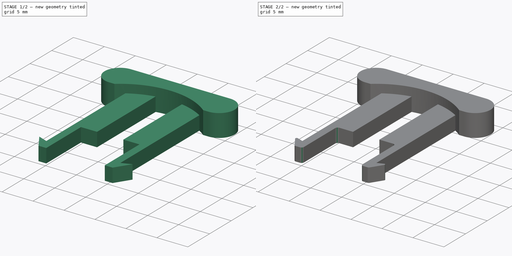
[diagram: build sequence overview — one tinted view per stage of 2, left to right]
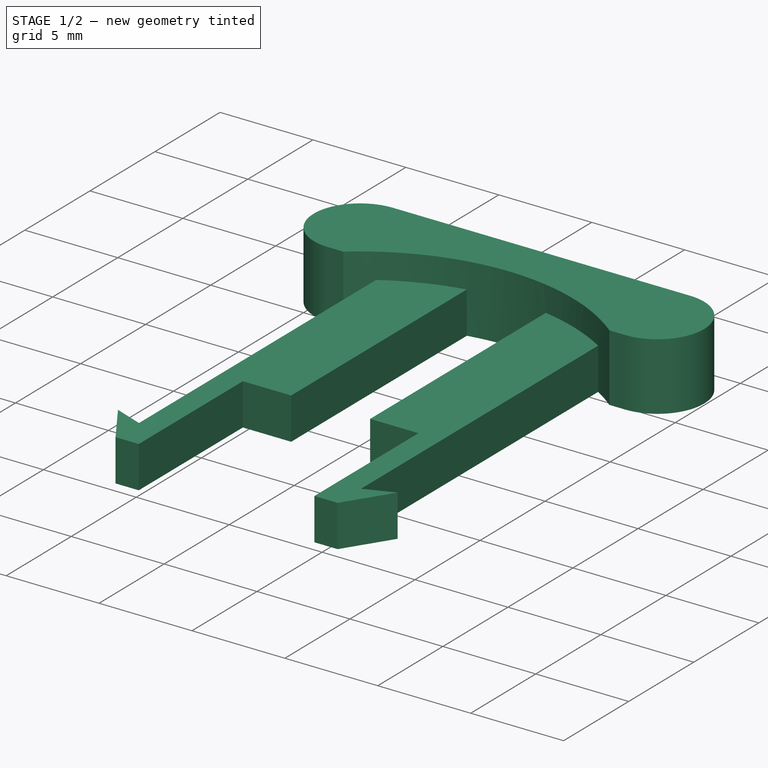
[diagram: stage 1 of 2 — iso view after this stage's code; geometry added in this stage tinted green]
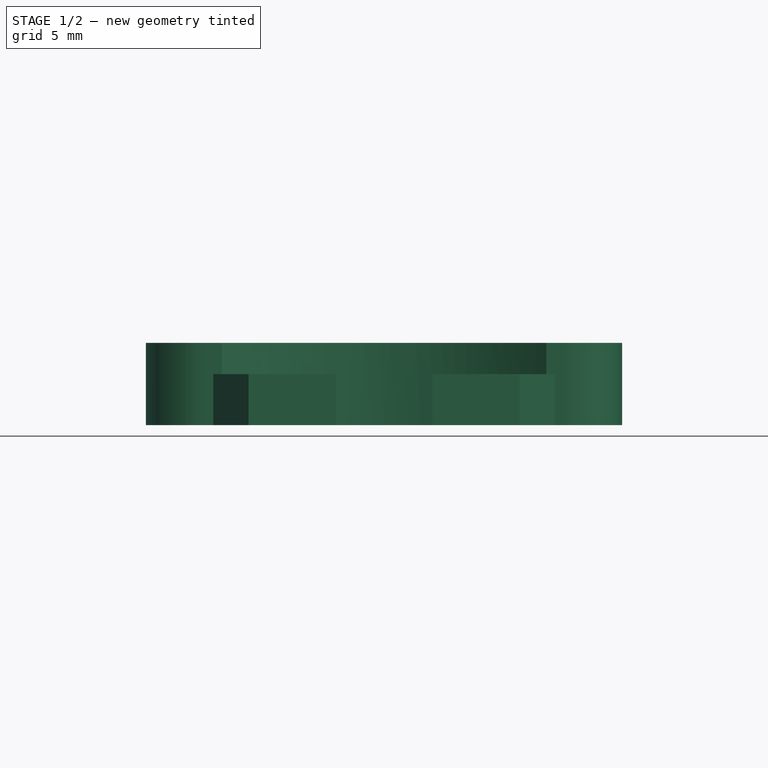
[diagram: stage 1 of 2 — front view after this stage's code; geometry added in this stage tinted green]
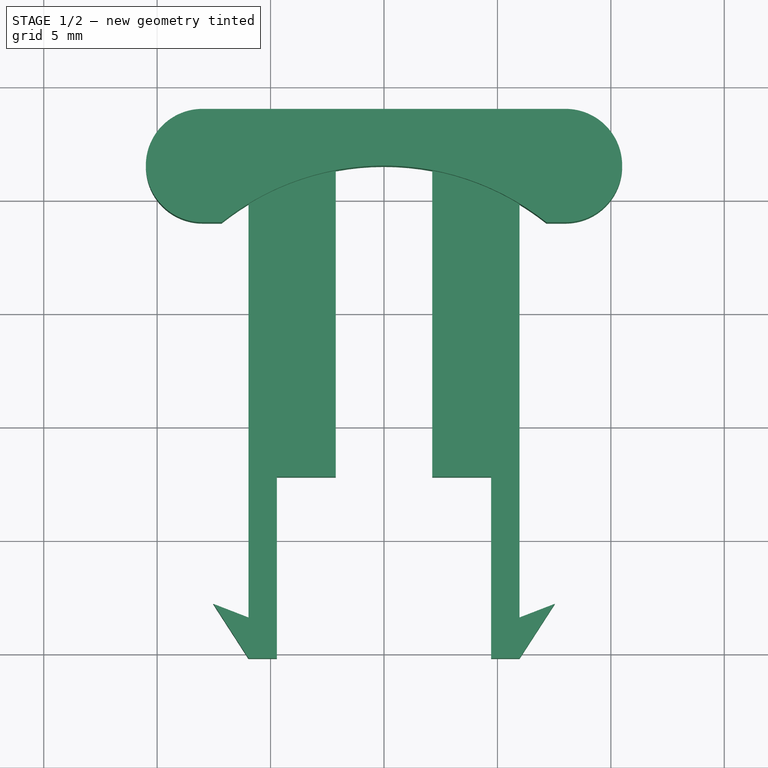
[diagram: stage 1 of 2 — top view after this stage's code; geometry added in this stage tinted green]
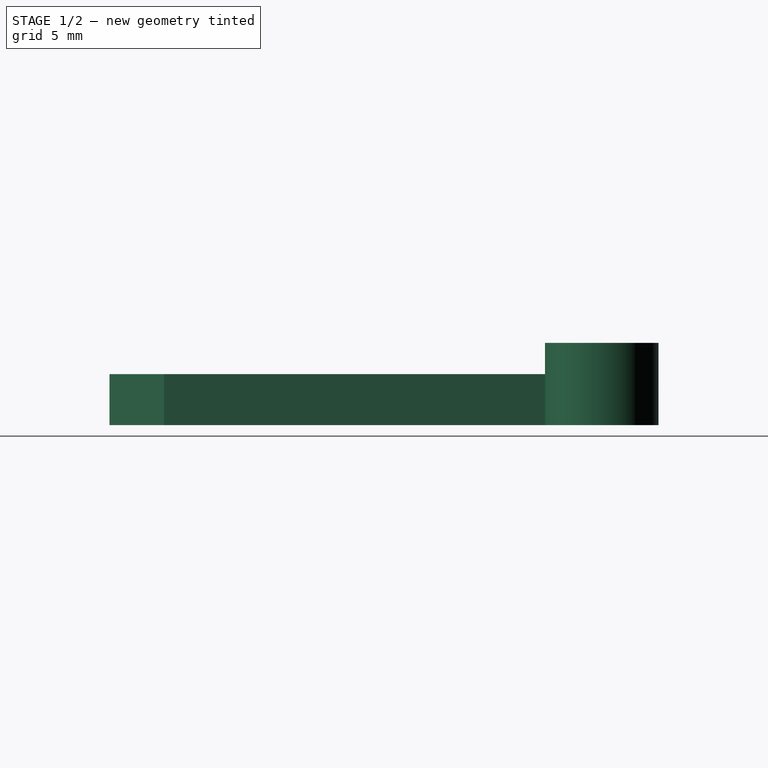
[diagram: stage 1 of 2 — right view after this stage's code; geometry added in this stage tinted green]
FCSTD DOCUMENT  (FreeCAD 0.21R33694 (Git))
Label: waru_awning_lock
License: All rights reserved
LicenseURL: https://en.wikipedia.org/wiki/All_rights_reserved
objects: Sketcher::SketchObject×2, PartDesign::Pad×2, PartDesign::Fillet×2, PartDesign::Body×1
note: 11 computed .brp shape members not serialized (recipe doc carries the construction recipe); baked Part::Feature solids carry a one-line shape summary decoded from their .brp

FEATURE [Sketcher::SketchObject] Sketch
  FullyConstrained = false
  MapMode = 5
  Support = -> [XY_Plane]
  sketch-geometry (6):
    g0: ArcOfCircle CenterX=0 CenterY=0 CenterZ=0 NormalX=0 NormalY=0 NormalZ=1 AngleXU=0 Radius=11.5 StartAngle=0.898845 EndAngle=2.24275
    g1: ArcOfCircle CenterX=-8 CenterY=11.5 CenterZ=0 NormalX=0 NormalY=0 NormalZ=1 AngleXU=0 Radius=2.5 StartAngle=1.5708 EndAngle=4.71239
    g2: ArcOfCircle CenterX=8 CenterY=11.5 CenterZ=0 NormalX=0 NormalY=0 NormalZ=1 AngleXU=0 Radius=2.5 StartAngle=4.71239 EndAngle=7.85398
    g3: LineSegment StartX=-8 StartY=9 StartZ=0 EndX=-7.15891 EndY=9 EndZ=0
    g4: LineSegment StartX=8 StartY=14 StartZ=0 EndX=-8 EndY=14 EndZ=0
    g5: LineSegment StartX=7.15891 StartY=9 StartZ=0 EndX=8 EndY=9 EndZ=0
  constraints (11):
    c: Tangent(g1,g3) = -1.5708
    c: Coincident(g5,g2) = -1.5708
    c: Tangent(g2,g4) = -1.5708
    c: Tangent(g4,g1) = -1.5708
    c: Equal(g1,g2)
    c: Horizontal(g3)
    c: Distance(g1,g2) = 16
    c: Diameter(g2) = 5
    c: DistanceX(g-2,g1) = -8
    c: Coincident(g0,g3)
    c: Coincident(g0,g5)
FEATURE [PartDesign::Pad] Pad
  Direction = (0,0,1)
  Length = 3.625
  Length2 = 10
  Profile = -> Sketch
  ReferenceAxis = -> Sketch [N_Axis]
  Type = 0
  expr: Length = 1.375 + 2.25
FEATURE [Sketcher::SketchObject] Sketch002
  FullyConstrained = false
  MapMode = 5
  Support = -> [XY_Plane]
  expr: Constraints[13] = -(4.25 / 2)
  sketch-geometry (18):
    g0: ArcOfCircle CenterX=0 CenterY=0 CenterZ=0 NormalX=0 NormalY=0 NormalZ=1 AngleXU=0 Radius=11.5 StartAngle=1.02445 EndAngle=1.38495
    g1: LineSegment StartX=-2.125 StartY=11.302 StartZ=0 EndX=-2.125 EndY=-2.19804 EndZ=0
    g2: LineSegment StartX=-2.125 StartY=-2.19804 StartZ=0 EndX=-4.725 EndY=-2.19804 EndZ=0
    g3: LineSegment StartX=-5.975 StartY=-2.19804 StartZ=0 EndX=-5.975 EndY=9.82595 EndZ=0
    g4: LineSegment StartX=4.725 StartY=-2.19804 StartZ=0 EndX=2.125 EndY=-2.19804 EndZ=0
    g5: LineSegment StartX=2.125 StartY=-2.19804 StartZ=0 EndX=2.125 EndY=11.302 EndZ=0
    g6: LineSegment StartX=5.975 StartY=9.82595 StartZ=0 EndX=5.975 EndY=-2.19804 EndZ=0
    g7: LineSegment StartX=-4.725 StartY=-2.19804 StartZ=0 EndX=-4.725 EndY=-10.198 EndZ=0
    g8: LineSegment StartX=-4.725 StartY=-10.198 StartZ=0 EndX=-5.975 EndY=-10.198 EndZ=0
    g9: LineSegment StartX=-5.975 StartY=-8.39804 StartZ=0 EndX=-5.975 EndY=-2.19804 EndZ=0
    g10: LineSegment StartX=4.725 StartY=-2.19804 StartZ=0 EndX=4.725 EndY=-10.198 EndZ=0
    g11: LineSegment StartX=4.725 StartY=-10.198 StartZ=0 EndX=5.975 EndY=-10.198 EndZ=0
    g12: LineSegment StartX=5.975 StartY=-8.39804 StartZ=0 EndX=5.975 EndY=-2.19804 EndZ=0
    g13: ArcOfCircle CenterX=0 CenterY=0 CenterZ=0 NormalX=0 NormalY=0 NormalZ=1 AngleXU=0 Radius=11.5 StartAngle=1.75665 EndAngle=2.11714
    g14: LineSegment StartX=-5.975 StartY=-10.198 StartZ=0 EndX=-7.525 EndY=-7.79804 EndZ=0
    g15: LineSegment StartX=-7.525 StartY=-7.79804 StartZ=0 EndX=-5.975 EndY=-8.39804 EndZ=0
    g16: LineSegment StartX=5.975 StartY=-10.198 StartZ=0 EndX=7.525 EndY=-7.79804 EndZ=0
    g17: LineSegment StartX=7.525 StartY=-7.79804 StartZ=0 EndX=5.975 EndY=-8.39804 EndZ=0
  constraints (52):
    c: Coincident(g1,g2)
    c: Horizontal(g2)
    c: Vertical(g1)
    c: Vertical(g3)
    c: Coincident(g4,g5)
    c: Horizontal(g4)
    c: Vertical(g5)
    c: Vertical(g6)
    c: Block(g0)
    c: Horizontal(g5,g1)
    c: Horizontal(g1,g4)
    c: DistanceX(g4,g6) = 3.85
    c: DistanceX(g1,g4) = 4.25
    c: DistanceX(g-2,g1) = -2.125
    c: DistanceY(g1,g1) = 13.5
    c: Coincident(g7,g8)
    c: Horizontal(g8)
    c: Vertical(g7)
    c: Vertical(g9)
    c: Coincident(g10,g11)
    c: Horizontal(g11)
    c: Vertical(g10)
    c: Vertical(g12)
    c: Horizontal(g7,g10)
    c: Equal(g8,g11)
    c: DistanceX(g11,g11) = 1.25
    c: DistanceY(g11,g12) = 8
    c: Coincident(g13,g3)
    c: Equal(g0,g13)
    c: PointOnObject(g0,g5)
    c: Coincident(g13,g1)
    c: Coincident(g0,g13)
    c: Coincident(g0,g6)
    c: Coincident(g14,g8)
    c: Coincident(g15,g14)
    c: Coincident(g16,g11)
    c: Coincident(g17,g16)
    c: Horizontal(g14,g16)
    c: Horizontal(g15,g17)
    c: Block(g3)
    c: Block(g9)
    c: Block(g7)
    c: Block(g2)
    c: Block(g6)
    c: Block(g4)
    c: Block(g10)
    c: DistanceX(g14,g7) = 2.8
    c: DistanceX(g10,g16) = 2.8
    c: DistanceY(g8,g14) = 2.4
    c: DistanceY(g7,g15) = 1.8
    c: Coincident(g9,g15)
    c: Coincident(g12,g17)
FEATURE [PartDesign::Pad] Pad001
  BaseFeature = -> Pad
  Direction = (0,0,1)
  Length = 2.25
  Length2 = 10
  Profile = -> Sketch002
  ReferenceAxis = -> Sketch002 [N_Axis]
  Type = 0
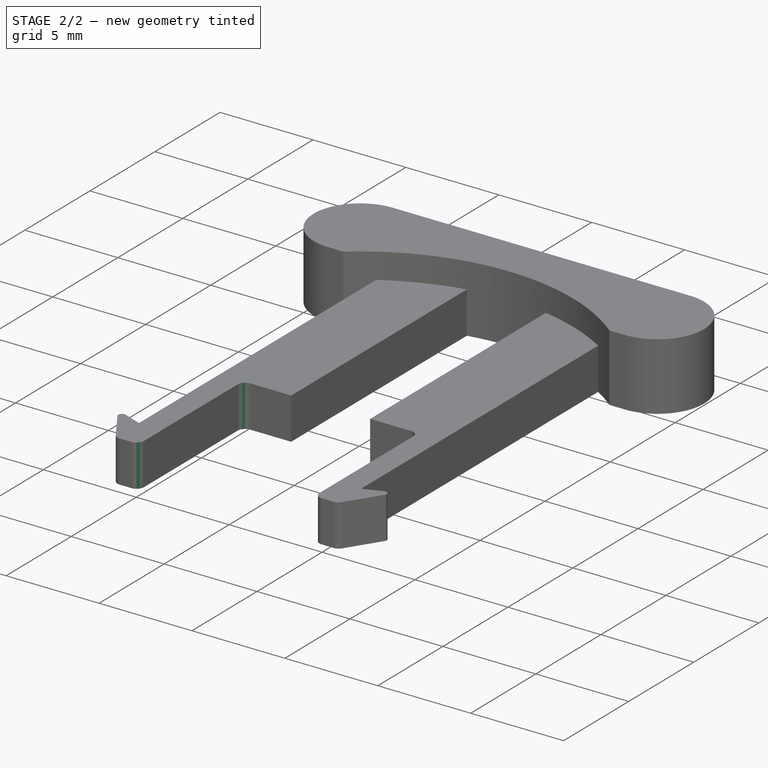
[diagram: stage 2 of 2 — iso view after this stage's code; geometry added in this stage tinted green]
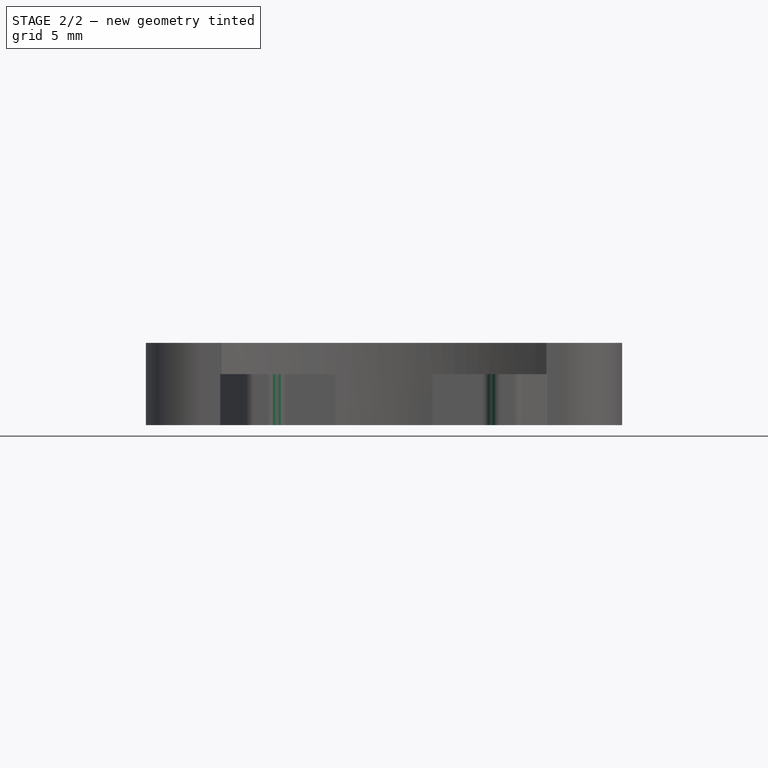
[diagram: stage 2 of 2 — front view after this stage's code; geometry added in this stage tinted green]
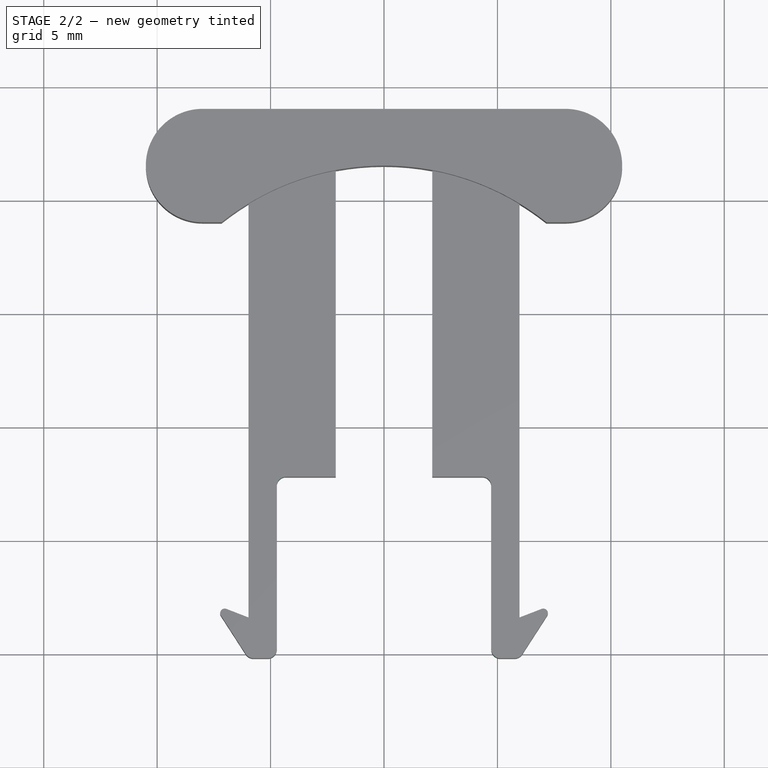
[diagram: stage 2 of 2 — top view after this stage's code; geometry added in this stage tinted green]
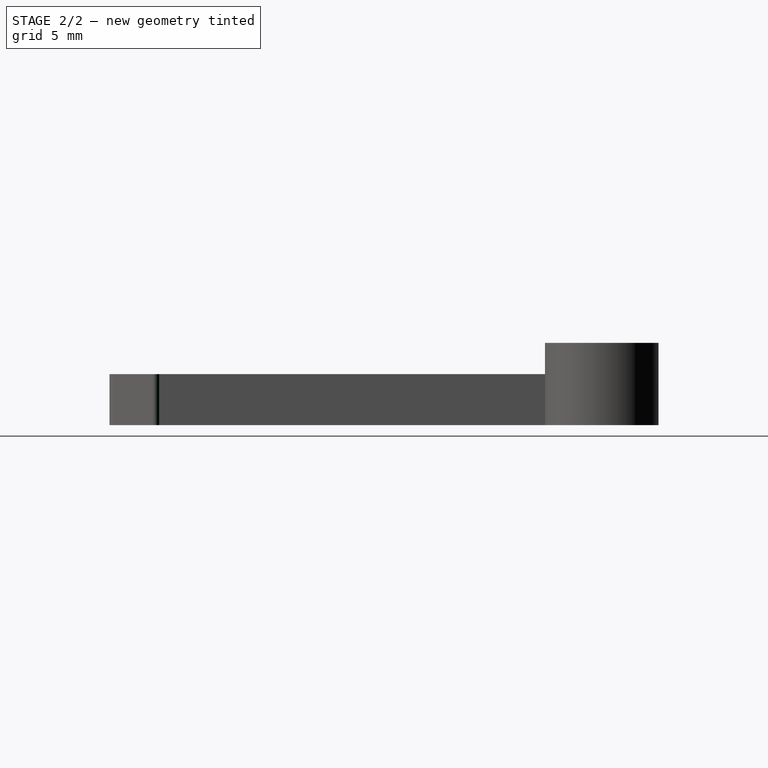
[diagram: stage 2 of 2 — right view after this stage's code; geometry added in this stage tinted green]
FEATURE [PartDesign::Fillet] Fillet
  Base = -> Pad001 [Edge66,Edge70,Edge71,Edge72,Edge67,Edge68]
  BaseFeature = -> Pad001
  Radius = 0.4
  SupportTransform = false
  UseAllEdges = false
FEATURE [PartDesign::Fillet] Fillet001
  Base = -> Fillet [Edge92,Edge42]
  BaseFeature = -> Fillet
  Radius = 0.2
  SupportTransform = false
  UseAllEdges = false
FEATURE [PartDesign::Body] Body  label="Körper"
  Group = -> [Sketch,Pad,Sketch002,Pad001,Fillet,Fillet001]
  Origin = -> Origin
  Tip = -> Fillet001
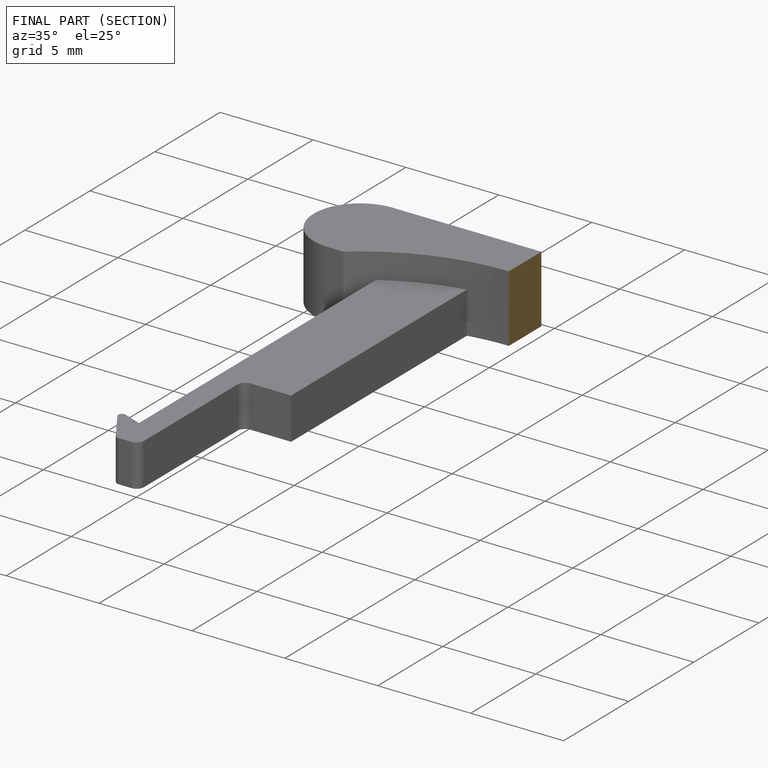
[diagram: finished part — half-section view (interior)]
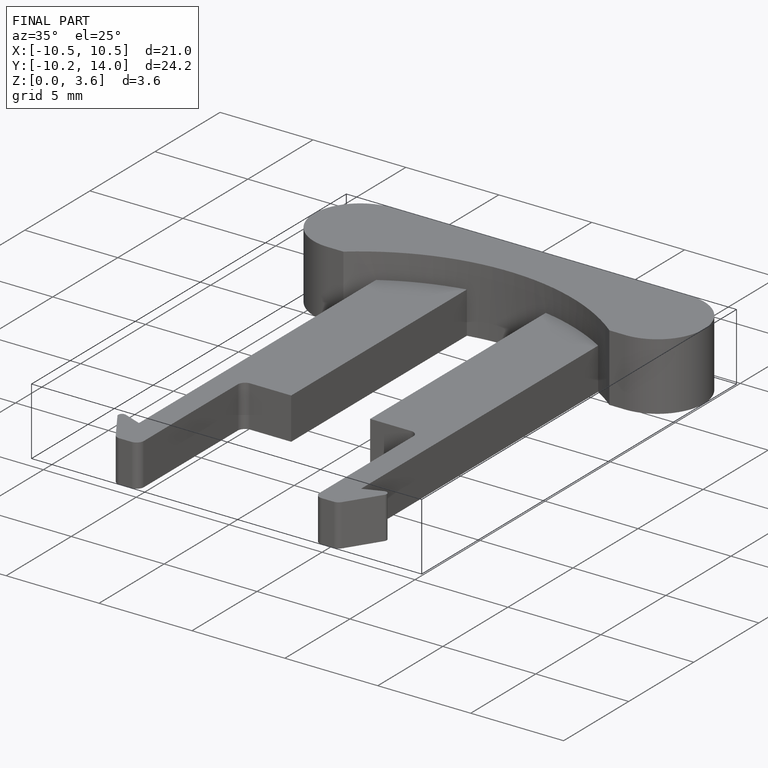
[diagram: finished part — iso view with bounding-box wireframe]
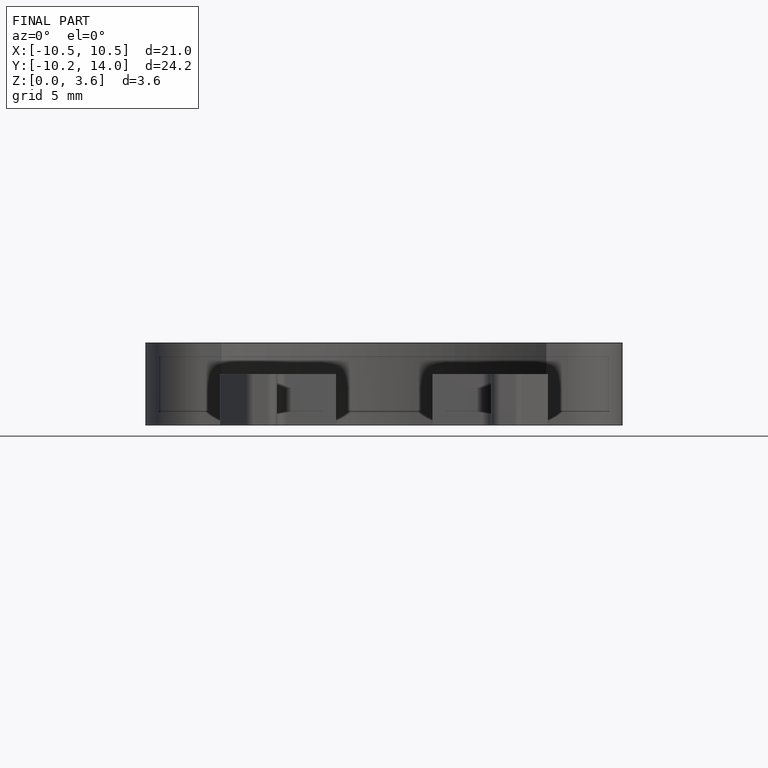
[diagram: finished part — front view with bounding-box wireframe]
